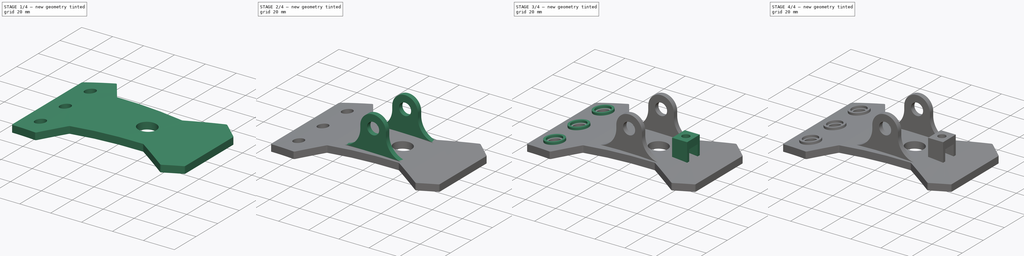
[diagram: build sequence overview — one tinted view per stage of 4, left to right]
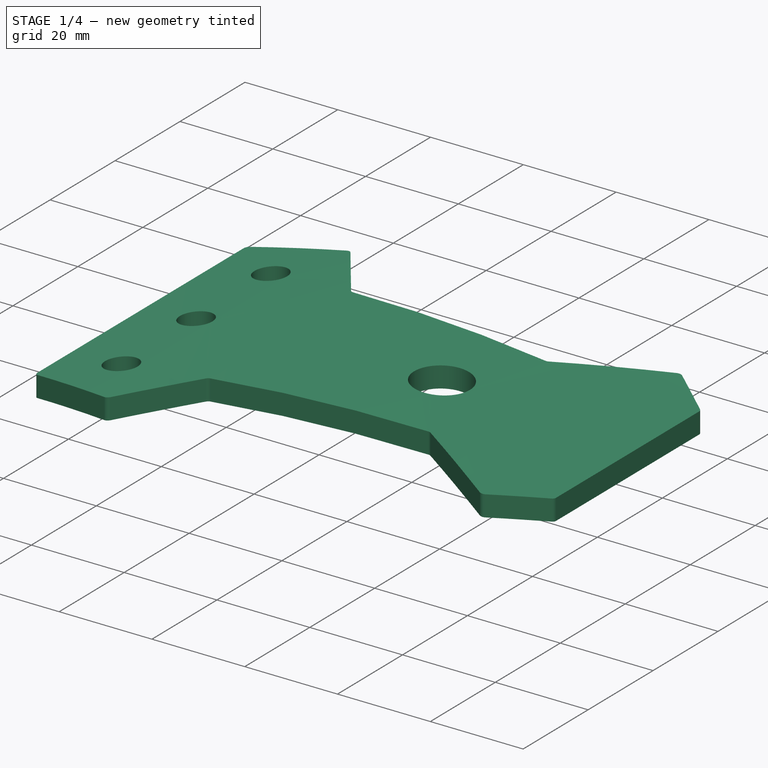
[diagram: stage 1 of 4 — iso view after this stage's code; geometry added in this stage tinted green]
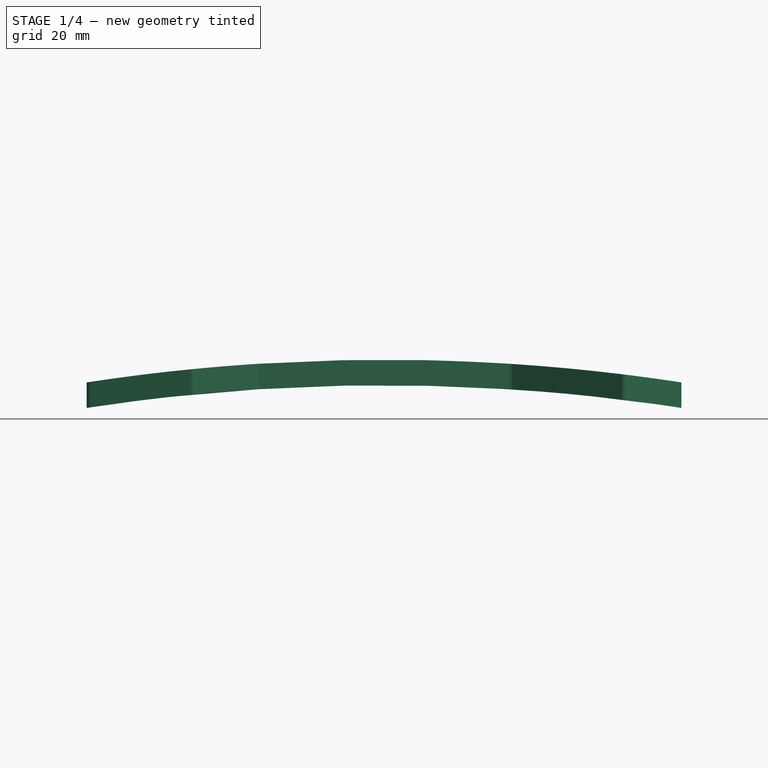
[diagram: stage 1 of 4 — front view after this stage's code; geometry added in this stage tinted green]
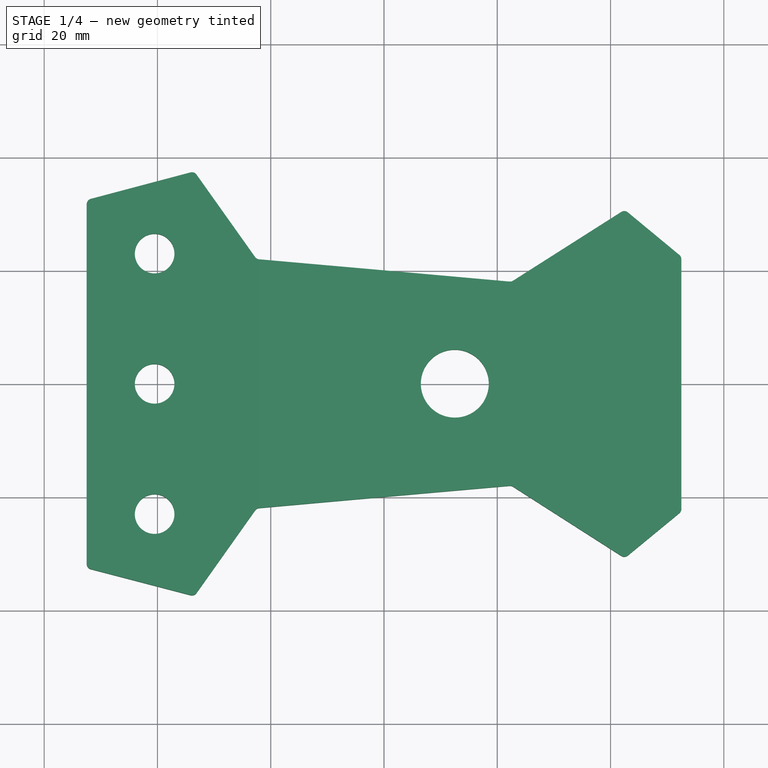
[diagram: stage 1 of 4 — top view after this stage's code; geometry added in this stage tinted green]
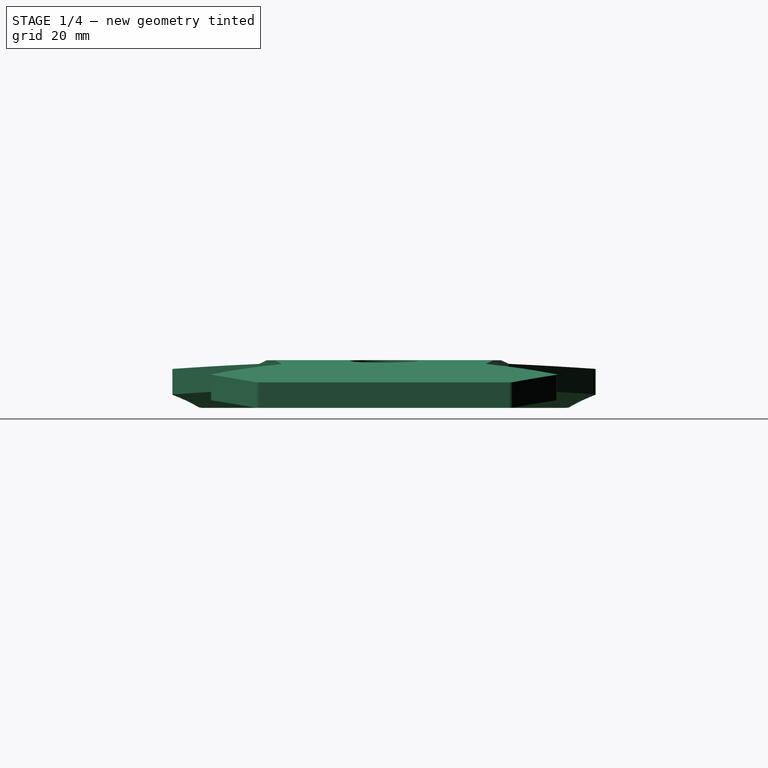
[diagram: stage 1 of 4 — right view after this stage's code; geometry added in this stage tinted green]
FCSTD DOCUMENT  (FreeCAD 0.19R24267 (Git))
Label: ClipLampeAlix2
License: All rights reserved
LicenseURL: http://en.wikipedia.org/wiki/All_rights_reserved
objects: Sketcher::SketchObject×7, PartDesign::Pad×4, PartDesign::Plane×3, PartDesign::Pocket×2, Spreadsheet::Sheet×1, PartDesign::Mirrored×1, Part::Part2DObjectPython×1, Part::Helix×1, Part::Sweep×1, Part::Cut×1, PartDesign::Body×1
note: 28 computed .brp shape members not serialized (recipe doc carries the construction recipe); baked Part::Feature solids carry a one-line shape summary decoded from their .brp

FEATURE [Spreadsheet::Sheet] Spreadsheet  label="Dimensions"
  cells = A1=BaseHeight1; B1(BaseHeight1)==65mm; A2=BaseHeight2; B2(BaseHeight2)==75mm; A3=BaseHeight3; B3(BaseHeight3)==44mm; A4=BaseHeight4; B4(BaseHeight4)==36mm; A5=BaseHeight5; B5(BaseHeight5)==61.5mm; A6=BaseHeight6; B6(BaseHeight6)==45mm; A7=BaseWidthTo1; B7(BaseWidthTo1)==105mm; A8=BaseWidthTo2; B8(BaseWidthTo2)==86mm; A9=BaseWidthTo3; B9(BaseWidthTo3)==75mm; A10=BaseWidthTo4; B10(BaseWidthTo4)==30mm; A11=BaseWidthTo5; B11(BaseWidthTo5)==10mm; A12=BaseCornerRadius; B12(BaseCornerRadius)==1mm; A13=BaseCurve; B13(BaseCurve)==4mm; C13=Base curve; A14=BaseThicknness; B14(BaseThicknness)==4.5mm; A15=BaseInitialThickness; B15(BaseInitialThickness)==9mm; A16=SuckerHoleCentreToHeight1; B16(SuckerHoleCentreToHeight1)==12mm; I16=6; A17=SuckerHoleBottomRadius; B17(SuckerHoleBottomRadius)==3.5mm; A18=SuckerHolesSeparation; B18(SuckerHolesSeparation)==23mm; A19=SuckerHoleWallOuterHeight; B19(SuckerHoleWallOuterHeight)==2.5mm; A20=SuckerHoleWallInnerHeight; B20(SuckerHoleWallInnerHeight)==1.5mm; A21=SuckerHoleWallThickness; B21(SuckerHoleWallThickness)==1.5mm; A22=SuckerHoleWallRadius; B22(SuckerHoleWallRadius)==12.5mm / 2; A23=SuckerHoleThrottleRadius; B23(SuckerHoleThrottleRadius)==2.5mm; A24=SuckerHoleThrottleFromBottom; B24(SuckerHoleThrottleFromBottom)=0; C24==3mm; A25=WireHoleToHeight6; B25(WireHoleToHeight6)==40mm; A26=WireHoleRadius; B26(WireHoleRadius)==6mm; A27=AxisOuterRadius; B27(AxisOuterRadius)==8.5mm; A28=AxisInnerRadius; B28(AxisInnerRadius)==4mm; A29=AxisThickness; B29(AxisThickness)==3.2mm; A30=AxisHeightFromBaseTop; B30(AxisHeightFromBaseTop)==22.5mm - AxisOuterRadius; A31=AxisHeightFromBaseBottom; B31(AxisHeightFromBaseBottom)==AxisHeightFromBaseTop + BaseInitialThickness; A32=AxisOuterSeparation; B32(AxisOuterSeparation)==33.5mm; C32==AxisOuterSeparation / 2; A33=AxisCentreFromHeight1; B33(AxisCentreFromHeight1)==57mm; A34=CableTieBoxLength; B34(CableTieBoxLength)==12mm; A35=CableTieBoxHeight; B35(CableTieBoxHeight)==12.5mm; A36=CableTieBoxWidth; B36(CableTieBoxWidth)==10mm; A37=CableTieXWallThickness; B37(CableTieXWallThickness)==5mm; A38=CableTieZWallThickness; B38(CableTieZWallThickness)==2mm; A39=CableTieScrewThreadRadiusInner; B39(CableTieScrewThreadRadiusInner)==2.8mm; A40=CableTieScrewThreadRadiusOuter; B40(CableTieScrewThreadRadiusOuter)==2.5mm; A41=CableTieScrewPitch; B41(CableTieScrewPitch)==1mm; A42=CableTieToHeight6Separation; B42(CableTieToHeight6Separation)==17mm; A43=CableTieToBase; B43(CableTieToBase)==BaseInitialThickness - 2.5mm; A44=CableTieCentrePosition; B44(CableTieCentrePosition)==BaseWidthTo1 / 2 - CableTieToHeight6Separation - CableTieBoxWidth / 2
FEATURE [Sketcher::SketchObject] Sketch  label="Sketch_BaseShape"
  FullyConstrained = true
  MapMode = 5
  Support = -> [XY_Plane]
  expr: Constraints[16] = <<Dimensions>>.BaseHeight1
  expr: Constraints[56] = <<Dimensions>>.BaseCornerRadius
  expr: Constraints[52] = <<Dimensions>>.BaseCornerRadius
  expr: Constraints[60] = <<Dimensions>>.BaseCornerRadius
  expr: Constraints[50] = <<Dimensions>>.BaseCornerRadius
  expr: Constraints[18] = <<Dimensions>>.BaseHeight3
  expr: Constraints[26] = <<Dimensions>>.BaseWidthTo4
  expr: Constraints[89] = <<Dimensions>>.BaseCornerRadius
  expr: Constraints[20] = <<Dimensions>>.BaseHeight6
  expr: Constraints[58] = <<Dimensions>>.BaseCornerRadius
  expr: Constraints[54] = <<Dimensions>>.BaseCornerRadius
  expr: Constraints[90] = <<Dimensions>>.SuckerHoleBottomRadius
  expr: Constraints[93] = <<Dimensions>>.SuckerHolesSeparation
  expr: Constraints[53] = <<Dimensions>>.BaseCornerRadius
  expr: Constraints[27] = <<Dimensions>>.BaseWidthTo1 / 2
  expr: Constraints[17] = <<Dimensions>>.BaseHeight2
  expr: Constraints[55] = <<Dimensions>>.BaseCornerRadius
  expr: Constraints[22] = <<Dimensions>>.BaseWidthTo1
  expr: Constraints[21] = <<Dimensions>>.BaseHeight4
  expr: Constraints[25] = <<Dimensions>>.BaseWidthTo5
  expr: Constraints[51] = <<Dimensions>>.BaseCornerRadius
  expr: Constraints[23] = <<Dimensions>>.BaseWidthTo2
  expr: Constraints[19] = <<Dimensions>>.BaseHeight5
  expr: Constraints[101] = <<Dimensions>>.WireHoleToHeight6
  expr: Constraints[59] = <<Dimensions>>.BaseCornerRadius
  expr: Constraints[24] = <<Dimensions>>.BaseWidthTo3
  expr: Constraints[94] = <<Dimensions>>.SuckerHolesSeparation
  expr: Constraints[57] = <<Dimensions>>.BaseCornerRadius
  expr: Constraints[91] = <<Dimensions>>.SuckerHoleBottomRadius
  expr: Constraints[92] = <<Dimensions>>.SuckerHoleBottomRadius
  expr: Constraints[98] = <<Dimensions>>.SuckerHoleCentreToHeight1
  expr: Constraints[100] = <<Dimensions>>.WireHoleRadius
  sketch-geometry (40):
    g0: LineSegment StartX=-52.5 StartY=32.5 StartZ=0 EndX=-52.5 EndY=-32.5 EndZ=0
    g1: LineSegment StartX=-52.5 StartY=-32.5 StartZ=0 EndX=-33.5 EndY=-37.5 EndZ=0
    g2: LineSegment StartX=-33.5 StartY=-37.5 StartZ=0 EndX=-22.5 EndY=-22 EndZ=0
    g3: LineSegment StartX=-22.5 StartY=-22 StartZ=0 EndX=22.5 EndY=-18 EndZ=0
    g4: LineSegment StartX=22.5 StartY=-18 StartZ=0 EndX=42.5 EndY=-30.75 EndZ=0
    g5: LineSegment StartX=42.5 StartY=-30.75 StartZ=0 EndX=52.5 EndY=-22.5 EndZ=0
    g6: LineSegment StartX=52.5 StartY=-22.5 StartZ=0 EndX=52.5 EndY=22.5 EndZ=0
    g7: LineSegment StartX=52.5 StartY=22.5 StartZ=0 EndX=42.5 EndY=30.75 EndZ=0
    g8: LineSegment StartX=42.5 StartY=30.75 StartZ=0 EndX=22.5 EndY=18 EndZ=0
    g9: LineSegment StartX=22.5 StartY=18 StartZ=0 EndX=-22.5 EndY=22 EndZ=0
    g10: LineSegment StartX=-22.5 StartY=22 StartZ=0 EndX=-33.5 EndY=37.5 EndZ=0
    g11: LineSegment StartX=-33.5 StartY=37.5 StartZ=0 EndX=-52.5 EndY=32.5 EndZ=0
    g12: LineSegment StartX=-52.5 StartY=31.7291 StartZ=0 EndX=-52.5 EndY=-31.7291 EndZ=0
    g13: LineSegment StartX=-51.7545 StartY=-32.6962 StartZ=0 EndX=-34.1694 EndY=-37.3238 EndZ=0
    g14: LineSegment StartX=-33.0994 StartY=-36.9355 StartZ=0 EndX=-22.7672 EndY=-22.3765 EndZ=0
    g15: LineSegment StartX=-22.0402 StartY=-21.9591 StartZ=0 EndX=22.1609 EndY=-18.0301 EndZ=0
    g16: LineSegment StartX=22.787 StartY=-18.183 StartZ=0 EndX=41.8869 EndY=-30.3592 EndZ=0
    g17: LineSegment StartX=43.0608 StartY=-30.2873 StartZ=0 EndX=52.1364 EndY=-22.8 EndZ=0
    g18: LineSegment StartX=52.5 StartY=-22.0286 StartZ=0 EndX=52.5 EndY=22.0286 EndZ=0
    g19: LineSegment StartX=52.1364 StartY=22.8 StartZ=0 EndX=43.0608 EndY=30.2873 EndZ=0
    g20: LineSegment StartX=41.8869 StartY=30.3592 StartZ=0 EndX=22.787 EndY=18.183 EndZ=0
    g21: LineSegment StartX=22.1609 StartY=18.0301 StartZ=0 EndX=-22.0402 EndY=21.9591 EndZ=0
    g22: LineSegment StartX=-22.7672 StartY=22.3765 StartZ=0 EndX=-33.0994 EndY=36.9355 EndZ=0
    g23: LineSegment StartX=-34.1694 StartY=37.3238 StartZ=0 EndX=-51.7545 EndY=32.6962 EndZ=0
    g24: ArcOfCircle CenterX=-33.9149 CenterY=36.3568 CenterZ=0 NormalX=0 NormalY=0 NormalZ=1 AngleXU=0 Radius=1 StartAngle=0.617191 EndAngle=1.82812
    g25: ArcOfCircle CenterX=-21.9517 CenterY=22.9552 CenterZ=0 NormalX=0 NormalY=0 NormalZ=1 AngleXU=0 Radius=1 StartAngle=3.75878 EndAngle=4.62373
    g26: ArcOfCircle CenterX=22.2495 CenterY=19.0262 CenterZ=0 NormalX=0 NormalY=0 NormalZ=1 AngleXU=0 Radius=1 StartAngle=4.62373 EndAngle=5.27993
    g27: ArcOfCircle CenterX=42.4245 CenterY=29.5159 CenterZ=0 NormalX=0 NormalY=0 NormalZ=1 AngleXU=0 Radius=1 StartAngle=0.880996 EndAngle=2.13833
    g28: ArcOfCircle CenterX=51.5 CenterY=22.0286 CenterZ=0 NormalX=0 NormalY=0 NormalZ=1 AngleXU=0 Radius=1 StartAngle=4e-16 EndAngle=0.880996
    g29: ArcOfCircle CenterX=51.5 CenterY=-22.0286 CenterZ=0 NormalX=0 NormalY=0 NormalZ=1 AngleXU=0 Radius=1 StartAngle=5.40219 EndAngle=6.28319
    g30: ArcOfCircle CenterX=42.4245 CenterY=-29.5159 CenterZ=0 NormalX=0 NormalY=0 NormalZ=1 AngleXU=0 Radius=1 StartAngle=4.14485 EndAngle=5.40219
    g31: ArcOfCircle CenterX=22.2495 CenterY=-19.0262 CenterZ=0 NormalX=0 NormalY=0 NormalZ=1 AngleXU=0 Radius=1 StartAngle=1.00326 EndAngle=1.65945
    g32: ArcOfCircle CenterX=-21.9517 CenterY=-22.9552 CenterZ=0 NormalX=0 NormalY=0 NormalZ=1 AngleXU=0 Radius=1 StartAngle=1.65945 EndAngle=2.5244
    g33: ArcOfCircle CenterX=-51.5 CenterY=-31.7291 CenterZ=0 NormalX=0 NormalY=0 NormalZ=1 AngleXU=0 Radius=1 StartAngle=3.14159 EndAngle=4.45507
    g34: ArcOfCircle CenterX=-51.5 CenterY=31.7291 CenterZ=0 NormalX=0 NormalY=0 NormalZ=1 AngleXU=0 Radius=1 StartAngle=1.82812 EndAngle=3.14159
    g35: ArcOfCircle CenterX=-33.9149 CenterY=-36.3568 CenterZ=0 NormalX=0 NormalY=0 NormalZ=1 AngleXU=0 Radius=1 StartAngle=4.45507 EndAngle=5.66599
    g36: Circle CenterX=-40.5 CenterY=0 CenterZ=0 NormalX=0 NormalY=0 NormalZ=1 AngleXU=0 Radius=3.5
    g37: Circle CenterX=-40.5 CenterY=23 CenterZ=0 NormalX=0 NormalY=0 NormalZ=1 AngleXU=0 Radius=3.5
    g38: Circle CenterX=-40.5 CenterY=-23 CenterZ=0 NormalX=0 NormalY=0 NormalZ=1 AngleXU=0 Radius=3.5
    g39: Circle CenterX=12.5 CenterY=0 CenterZ=0 NormalX=0 NormalY=0 NormalZ=1 AngleXU=0 Radius=6
  constraints (102):
    c: Coincident(g0,g1)
    c: Coincident(g2,g3)
    c: Coincident(g3,g4)
    c: Coincident(g4,g5)
    c: Coincident(g5,g6)
    c: Coincident(g6,g7)
    c: Coincident(g7,g8)
    c: Coincident(g8,g9)
    c: Coincident(g9,g10)
    c: Coincident(g10,g11)
    c: Coincident(g11,g0)
    c: Symmetric(g0,g0,g-1)
    c: Symmetric(g2,g9,g-1)
    c: Symmetric(g8,g3,g-1)
    c: Symmetric(g7,g4,g-1)
    c: Symmetric(g6,g5,g-1)
    c: DistanceY(g0,g0) = 65
    c: DistanceY(g2,g10) = 75
    c: DistanceY(g2,g9) = 44
    c: DistanceY(g4,g7) = 61.5
    c: DistanceY(g6,g6) = 45
    c: DistanceY(g3,g8) = 36
    c: DistanceX(g0,g5) = 105
    c: DistanceX(g2,g5) = 86
    c: DistanceX(g2,g5) = 75
    c: DistanceX(g4,g5) = 10
    c: DistanceX(g3,g5) = 30
    c: DistanceX(g-1,g5) = 52.5
    c: Tangent(g23,g24) = -1.5708
    c: Tangent(g22,g24) = -1.5708
    c: Tangent(g22,g25) = 1.5708
    c: Tangent(g21,g25) = 1.5708
    c: Tangent(g21,g26) = 1.5708
    c: Tangent(g20,g26) = 1.5708
    c: Tangent(g20,g27) = -1.5708
    c: Tangent(g19,g27) = -1.5708
    c: Tangent(g19,g28) = -1.5708
    c: Tangent(g18,g28) = -1.5708
    c: Tangent(g18,g29) = -1.5708
    c: Tangent(g17,g29) = -1.5708
    c: Tangent(g17,g30) = -1.5708
    c: Tangent(g16,g30) = -1.5708
    c: Tangent(g16,g31) = 1.5708
    c: Tangent(g15,g31) = 1.5708
    c: Tangent(g15,g32) = 1.5708
    c: Tangent(g14,g32) = 1.5708
    c: Tangent(g13,g33) = -1.5708
    c: Tangent(g12,g33) = -1.5708
    c: Tangent(g12,g34) = -1.5708
    c: Tangent(g23,g34) = -1.5708
    c: Radius(g34) = 1
    c: Radius(g24) = 1
    c: Radius(g25) = 1
    c: Radius(g26) = 1
    c: Radius(g27) = 1
    c: Radius(g28) = 1
    c: Radius(g33) = 1
    c: Radius(g32) = 1
    c: Radius(g31) = 1
    c: Radius(g30) = 1
    c: Radius(g29) = 1
    c: Parallel(g15,g3)
    c: Parallel(g16,g4)
    c: Parallel(g17,g5)
    c: Parallel(g18,g6)
    c: Parallel(g2,g14)
    c: Parallel(g13,g1)
    c: Parallel(g12,g0)
    c: Parallel(g23,g11)
    c: Parallel(g19,g7)
    c: Parallel(g20,g8)
    c: Parallel(g21,g9)
    c: Coincident(g2,g1)
    c: Parallel(g22,g10)
    c: Symmetric(g10,g1,g-1)
    c: PointOnObject(g22,g10)
    c: PointOnObject(g23,g11)
    c: PointOnObject(g21,g9)
    c: PointOnObject(g12,g0)
    c: PointOnObject(g20,g8)
    c: PointOnObject(g19,g7)
    c: PointOnObject(g18,g6)
    c: PointOnObject(g13,g1)
    c: PointOnObject(g17,g5)
    c: PointOnObject(g16,g4)
    c: PointOnObject(g15,g3)
    c: PointOnObject(g14,g2)
    c: Tangent(g14,g35) = -1.5708
    c: Tangent(g13,g35) = -1.5708
    c: Radius(g35) = 1
    c: Radius(g37) = 3.5
    c: Radius(g36) = 3.5
    c: Radius(g38) = 3.5
    c: DistanceY(g36,g37) = 23
    c: DistanceY(g38,g36) = 23
    c: Vertical(g36,g37)
    c: Vertical(g36,g38)
    c: Horizontal(g36,g-1)
    c: Distance(g36,g12) = 12
    c: Horizontal(g39,g-1)
    c: Radius(g39) = 6
    c: Distance(g39,g18) = 40
FEATURE [PartDesign::Pad] Pad  label="Pad_Base"
  AllowMultiFace = false
  Direction = (1,1,1)
  Length = 9
  Length2 = 100
  Profile = -> Sketch
  Type = 0
  expr: Length = <<Dimensions>>.BaseInitialThickness
FEATURE [PartDesign::Plane] DatumPlane  label="DatumPlane_BasePlateCurve"
  AttachmentOffset = pos=(0,0,37.5) rot=(0,0,1;0rad)
  Length = 123.071
  MapMode = 2
  Placement = pos=(0,-37.5,-8.3e-15) rot=(1,0,0;1.5708rad)
  ResizeMode = 0
  Support = -> [XZ_Plane]
  Width = 64.7207
  expr: .AttachmentOffset.Base.z = <<Dimensions>>.BaseHeight2 / 2
FEATURE [Sketcher::SketchObject] Sketch005  label="Sketch_BasePlateCurve"
  FullyConstrained = true
  MapMode = 5
  Placement = pos=(0,-37.5,-8.3e-15) rot=(1,0,0;1.5708rad)
  Support = -> [DatumPlane]
  expr: Constraints[10] = <<Dimensions>>.BaseWidthTo1
  expr: Constraints[11] = <<Dimensions>>.BaseWidthTo1 / 2
  expr: Constraints[12] = <<Dimensions>>.BaseThicknness
  expr: Constraints[13] = <<Dimensions>>.BaseInitialThickness
  expr: Constraints[14] = <<Dimensions>>.BaseCurve
  expr: Constraints[15] = <<Dimensions>>.BaseThicknness
  sketch-geometry (14):
    g0: GeomPoint X=-52.5 Y=9 Z=0
    g1: GeomPoint X=-52.5 Y=4.5 Z=0
    g2: GeomPoint X=-52.5 Y=0 Z=0
    g3: GeomPoint X=52.5 Y=9 Z=0
    g4: GeomPoint X=52.5 Y=4.5 Z=0
    g5: GeomPoint X=52.5 Y=0 Z=0
    g6: GeomPoint X=0 Y=4 Z=0
    g7: GeomPoint X=0 Y=8.5 Z=0
    g8: LineSegment StartX=-52.5 StartY=0 StartZ=0 EndX=52.5 EndY=0 EndZ=0
    g9: LineSegment StartX=-52.5 StartY=9 StartZ=0 EndX=52.5 EndY=9 EndZ=0
    g10: LineSegment StartX=52.5 StartY=9 StartZ=0 EndX=52.5 EndY=4.5 EndZ=0
    g11: LineSegment StartX=-52.5 StartY=9 StartZ=0 EndX=-52.5 EndY=4.5 EndZ=0
    g12: ArcOfCircle CenterX=-9.23e-14 CenterY=-342.531 CenterZ=0 NormalX=0 NormalY=0 NormalZ=1 AngleXU=0 Radius=346.531 StartAngle=1.41871 EndAngle=1.72288
    g13: ArcOfCircle CenterX=-1.49e-14 CenterY=-338.031 CenterZ=0 NormalX=0 NormalY=0 NormalZ=1 AngleXU=0 Radius=346.531 StartAngle=1.41871 EndAngle=1.72288
  constraints (30):
    c: PointOnObject(g2,g-1)
    c: PointOnObject(g5,g-1)
    c: PointOnObject(g6,g-2)
    c: PointOnObject(g7,g-2)
    c: Vertical(g5,g4)
    c: Vertical(g4,g3)
    c: Vertical(g2,g1)
    c: Vertical(g1,g0)
    c: Horizontal(g0,g3)
    c: Horizontal(g1,g4)
    c: DistanceX(g2,g5) = 105
    c: DistanceX(g-1,g5) = 52.5
    c: DistanceY(g5,g4) = 4.5
    c: DistanceY(g5,g3) = 9
    c: DistanceY(g-1,g6) = 4
    c: DistanceY(g6,g7) = 4.5
    c: Coincident(g8,g2)
    c: Coincident(g8,g5)
    c: Coincident(g9,g0)
    c: Coincident(g9,g3)
    c: Coincident(g10,g3)
    c: Coincident(g10,g4)
    c: Coincident(g11,g0)
    c: Coincident(g11,g1)
    c: Coincident(g12,g2)
    c: Coincident(g12,g5)
    c: PointOnObject(g6,g12)
    c: Coincident(g13,g4)
    c: Coincident(g13,g1)
    c: PointOnObject(g7,g13)
FEATURE [PartDesign::Pocket] Pocket  label="Pocket_basePlatCurve"
  AllowMultiFace = false
  BaseFeature = -> Pad
  Length = 75
  Length2 = 100
  Profile = -> Sketch005
  Type = 0
  expr: Length = <<Dimensions>>.BaseHeight2
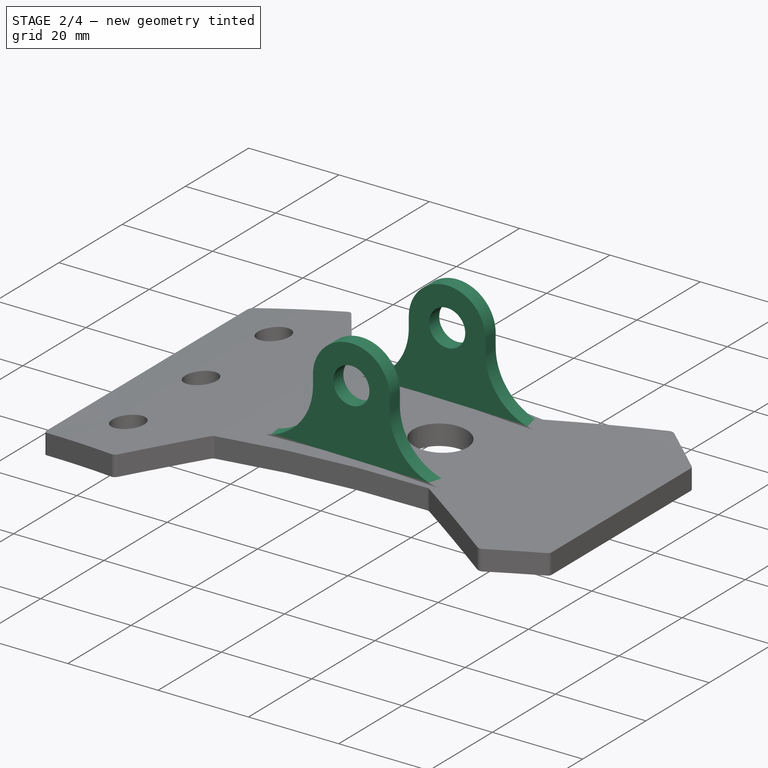
[diagram: stage 2 of 4 — iso view after this stage's code; geometry added in this stage tinted green]
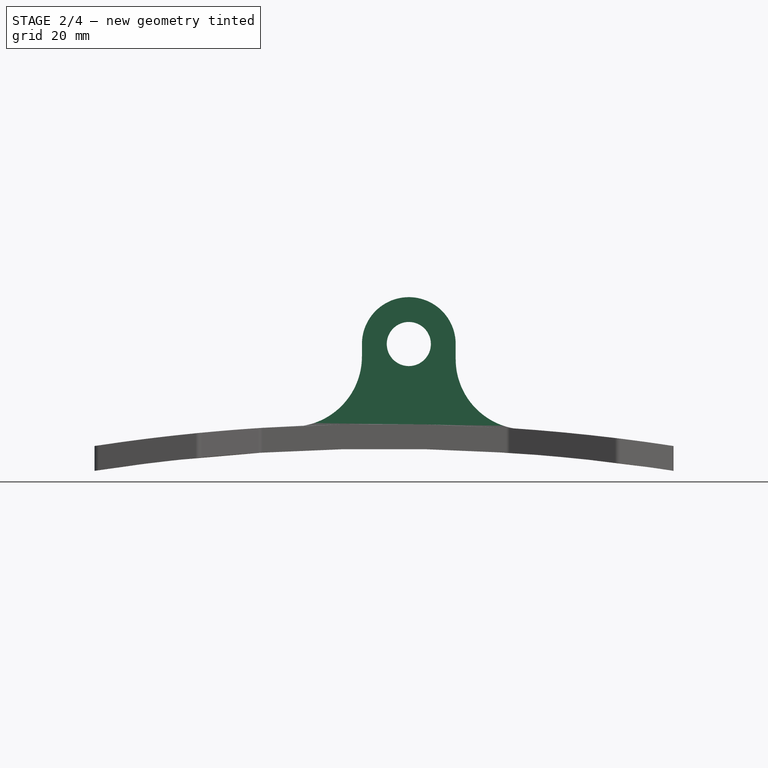
[diagram: stage 2 of 4 — front view after this stage's code; geometry added in this stage tinted green]
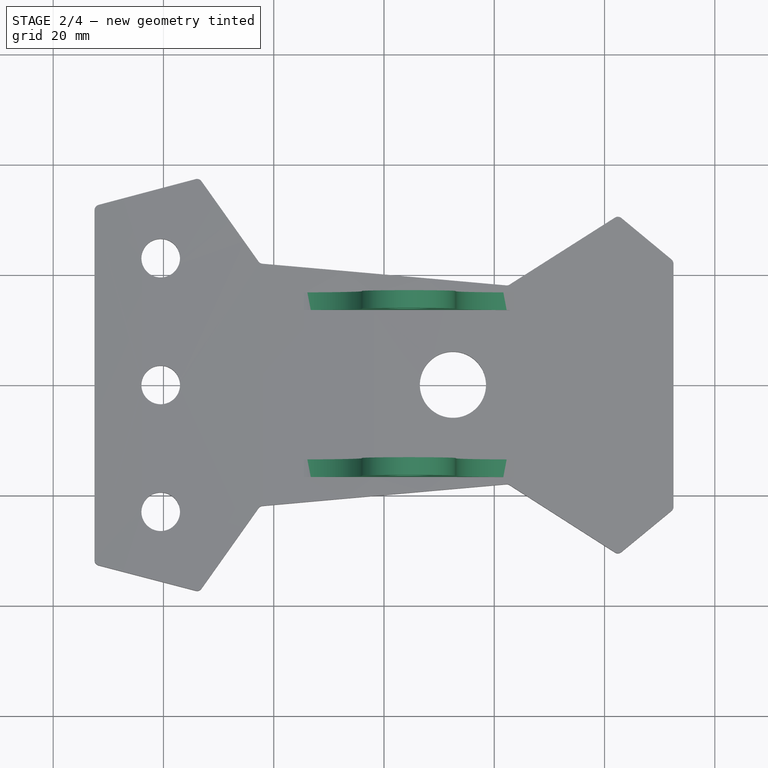
[diagram: stage 2 of 4 — top view after this stage's code; geometry added in this stage tinted green]
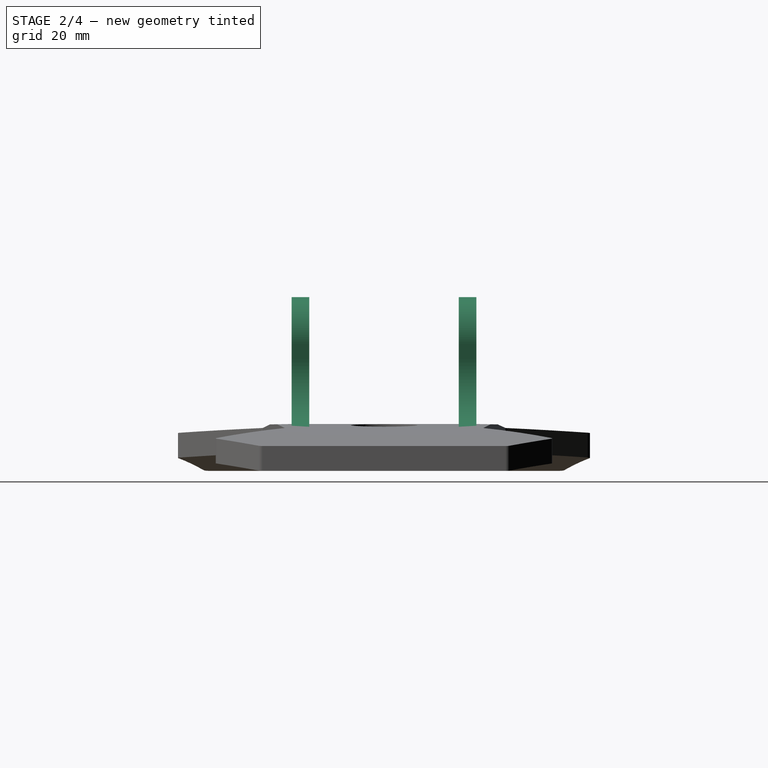
[diagram: stage 2 of 4 — right view after this stage's code; geometry added in this stage tinted green]
FEATURE [PartDesign::Plane] DatumPlane001  label="DatumPlane_FrontAxisSupport"
  AttachmentOffset = pos=(0,0,16.75) rot=(0,0,1;0rad)
  Length = 123.071
  MapMode = 2
  Placement = pos=(0,-16.75,-3.7e-15) rot=(1,0,0;1.5708rad)
  ResizeMode = 0
  Support = -> [XZ_Plane]
  Width = 64.7207
  expr: .AttachmentOffset.Base.z = <<Dimensions>>.AxisOuterSeparation / 2
FEATURE [Sketcher::SketchObject] Sketch006  label="Sketch_AxisSupport1"
  FullyConstrained = true
  MapMode = 5
  Placement = pos=(0,-16.75,-3.7e-15) rot=(1,0,0;1.5708rad)
  Support = -> [DatumPlane001]
  expr: Constraints[0] = <<Dimensions>>.AxisHeightFromBaseBottom
  expr: Constraints[3] = <<Dimensions>>.AxisCentreFromHeight1
  expr: Constraints[2] = <<Dimensions>>.BaseWidthTo1 / 2
  expr: Constraints[5] = <<Dimensions>>.AxisInnerRadius
  expr: Constraints[7] = <<Dimensions>>.AxisOuterRadius * 2.5
  expr: Constraints[13] = <<Dimensions>>.AxisOuterRadius
  sketch-geometry (11):
    g0: GeomPoint X=4.5 Y=23 Z=0
    g1: GeomPoint X=-52.5 Y=0 Z=0
    g2: Circle CenterX=4.5 CenterY=23 CenterZ=0 NormalX=0 NormalY=0 NormalZ=1 AngleXU=0 Radius=4
    g3: LineSegment StartX=-16.75 StartY=8 StartZ=0 EndX=-4 EndY=8 EndZ=0
    g4: ArcOfCircle CenterX=-16.75 CenterY=20.75 CenterZ=0 NormalX=0 NormalY=0 NormalZ=1 AngleXU=0 Radius=12.75 StartAngle=4.71239 EndAngle=6.28319
    g5: ArcOfCircle CenterX=25.75 CenterY=20.25 CenterZ=0 NormalX=0 NormalY=0 NormalZ=1 AngleXU=0 Radius=12.75 StartAngle=3.14159 EndAngle=4.71239
    g6: LineSegment StartX=13 StartY=7.5 StartZ=0 EndX=25.75 EndY=7.5 EndZ=0
    g7: ArcOfCircle CenterX=4.5 CenterY=23 CenterZ=0 NormalX=0 NormalY=0 NormalZ=1 AngleXU=0 Radius=8.5 StartAngle=0 EndAngle=3.14159
    g8: LineSegment StartX=13 StartY=23 StartZ=0 EndX=13 EndY=20.25 EndZ=0
    g9: LineSegment StartX=-4 StartY=23 StartZ=0 EndX=-4 EndY=20.75 EndZ=0
    g10: LineSegment StartX=-4 StartY=8 StartZ=0 EndX=13 EndY=7.5 EndZ=0
  constraints (26):
    c: DistanceY(g-1,g0) = 23
    c: PointOnObject(g1,g-1)
    c: DistanceX(g1,g-1) = 52.5
    c: DistanceX(g1,g0) = 57
    c: Coincident(g2,g0)
    c: Radius(g2) = 4
    c: Horizontal(g6)
    c: Vertical(g4,g3) = 21.25
    c: DistanceY(g-1,g3) = 8
    c: DistanceY(g-1,g5) = 7.5
    c: DistanceX(g4,g0) = 21.25
    c: DistanceX(g0,g5) = 21.25
    c: Coincident(g7,g0)
    c: Radius(g7) = 8.5
    c: Vertical(g8)
    c: Vertical(g9)
    c: Tangent(g8,g5) = -1.5708
    c: Tangent(g9,g4) = 1.5708
    c: Tangent(g8,g7) = 1.5708
    c: Tangent(g9,g7) = -1.5708
    c: Coincident(g10,g3)
    c: Coincident(g10,g6)
    c: Vertical(g3,g4)
    c: Vertical(g6,g5)
    c: Tangent(g6,g5) = -1.5708
    c: Tangent(g3,g4) = -1.5708
FEATURE [PartDesign::Pad] Pad002  label="Pad_AxisSupport1"
  AllowMultiFace = false
  BaseFeature = -> Pocket
  Direction = (1,1,1)
  Length = 3.2
  Length2 = 100
  Profile = -> Sketch006
  Reversed = true
  Type = 0
  expr: Length = <<Dimensions>>.AxisThickness
FEATURE [PartDesign::Mirrored] Mirrored  label="Mirrored_Pad_AxisSupport1_for2"
  BaseFeature = -> Pad002
  MirrorPlane = -> XZ_Plane
  Originals = -> [Pad002]
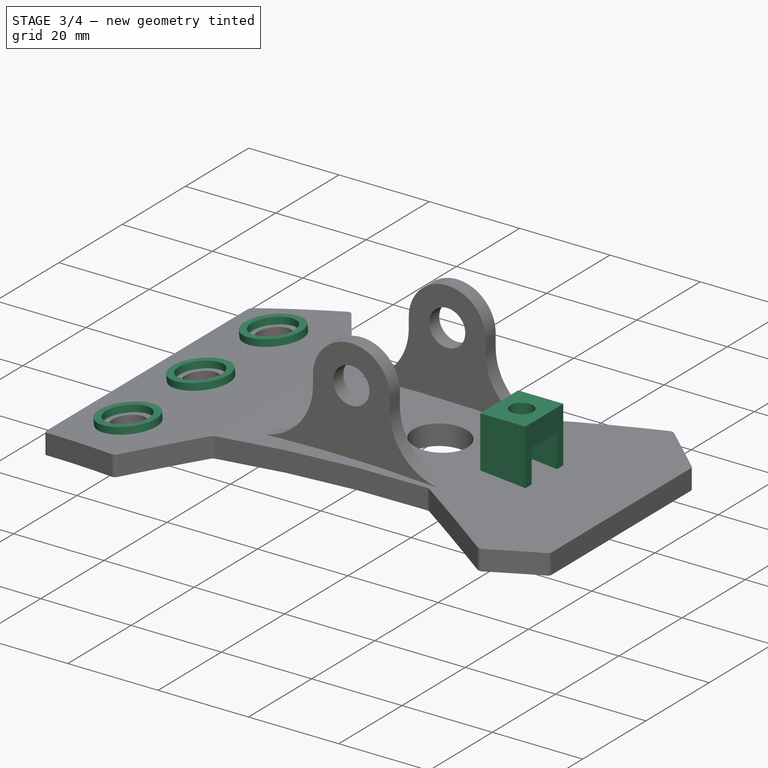
[diagram: stage 3 of 4 — iso view after this stage's code; geometry added in this stage tinted green]
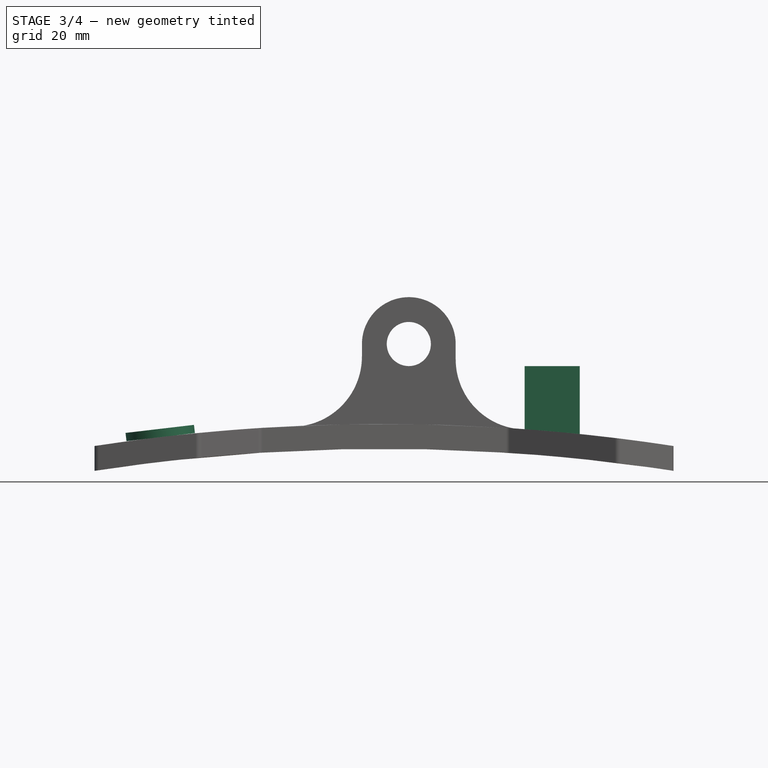
[diagram: stage 3 of 4 — front view after this stage's code; geometry added in this stage tinted green]
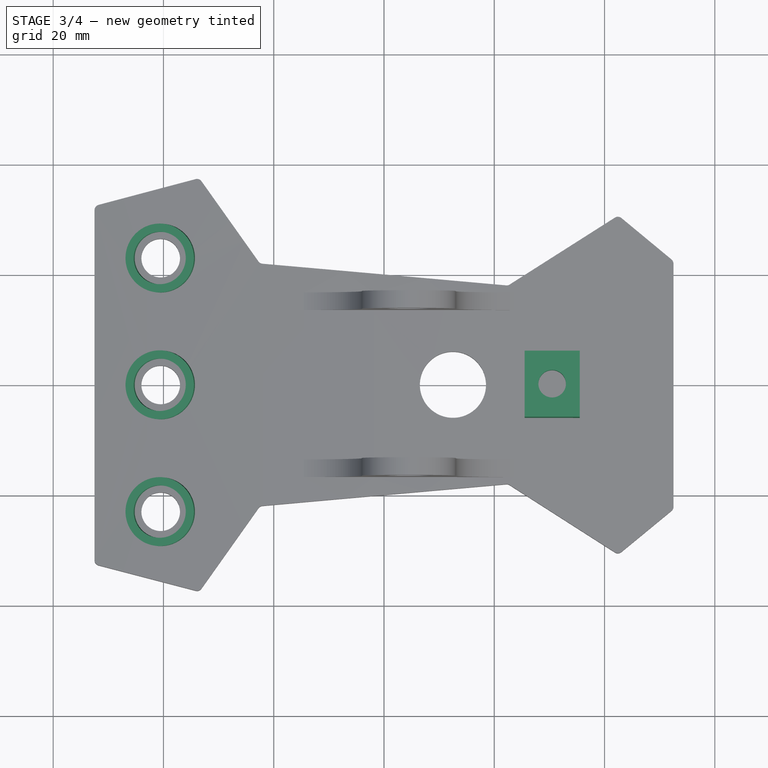
[diagram: stage 3 of 4 — top view after this stage's code; geometry added in this stage tinted green]
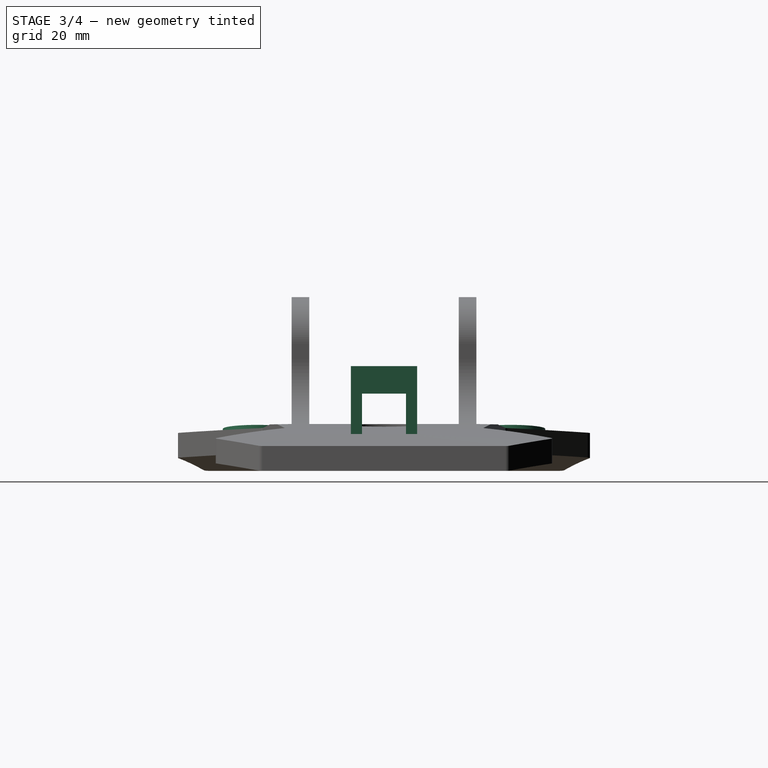
[diagram: stage 3 of 4 — right view after this stage's code; geometry added in this stage tinted green]
FEATURE [PartDesign::Plane] DatumPlane002  label="DatumPlane_CableTie"
  AttachmentOffset = pos=(0,0,-17) rot=(0,0,1;0rad)
  Length = 86.9356
  MapMode = 5
  Placement = pos=(35.5,0,0) rot=(0.57735,0.57735,0.57735;2.0944rad)
  ResizeMode = 0
  Support = -> [Pad002]
  Width = 62.2239
  expr: .AttachmentOffset.Base.z = -<<Dimensions>>.CableTieToHeight6Separation
FEATURE [Sketcher::SketchObject] Sketch007  label="SketchCableTie"
  FullyConstrained = true
  MapMode = 5
  Placement = pos=(35.5,0,0) rot=(0.57735,0.57735,0.57735;2.0944rad)
  Support = -> [DatumPlane002]
  expr: Constraints[16] = <<Dimensions>>.CableTieZWallThickness
  expr: Constraints[17] = <<Dimensions>>.CableTieZWallThickness
  expr: Constraints[22] = <<Dimensions>>.CableTieBoxLength / 2
  expr: Constraints[18] = <<Dimensions>>.CableTieXWallThickness
  expr: Constraints[19] = <<Dimensions>>.CableTieBoxHeight
  expr: Constraints[21] = <<Dimensions>>.CableTieToBase
  sketch-geometry (8):
    g0: LineSegment StartX=-6 StartY=19 StartZ=0 EndX=-6 EndY=6.5 EndZ=0
    g1: LineSegment StartX=-6 StartY=6.5 StartZ=0 EndX=-4 EndY=6.5 EndZ=0
    g2: LineSegment StartX=-4 StartY=6.5 StartZ=0 EndX=-4 EndY=14 EndZ=0
    g3: LineSegment StartX=-4 StartY=14 StartZ=0 EndX=4 EndY=14 EndZ=0
    g4: LineSegment StartX=4 StartY=14 StartZ=0 EndX=4 EndY=6.5 EndZ=0
    g5: LineSegment StartX=4 StartY=6.5 StartZ=0 EndX=6 EndY=6.5 EndZ=0
    g6: LineSegment StartX=6 StartY=6.5 StartZ=0 EndX=6 EndY=19 EndZ=0
    g7: LineSegment StartX=6 StartY=19 StartZ=0 EndX=-6 EndY=19 EndZ=0
  constraints (23):
    c: Vertical(g0)
    c: Coincident(g0,g1)
    c: Horizontal(g1)
    c: Coincident(g1,g2)
    c: Vertical(g2)
    c: Coincident(g2,g3)
    c: Coincident(g3,g4)
    c: Coincident(g4,g5)
    c: Coincident(g5,g6)
    c: Vertical(g6)
    c: Coincident(g6,g7)
    c: Coincident(g7,g0)
    c: Horizontal(g7)
    c: Vertical(g4)
    c: Horizontal(g3)
    c: Horizontal(g5)
    c: DistanceX(g5,g5) = 2
    c: DistanceX(g1,g1) = 2
    c: DistanceY(g3,g6) = 5
    c: DistanceY(g5,g6) = 12.5
    c: Symmetric(g4,g1,g-2)
    c: DistanceY(g-1,g4) = 6.5
    c: DistanceX(g0,g-1) = 6
FEATURE [PartDesign::Pad] Pad003  label="Pad_CableTie"
  AllowMultiFace = false
  BaseFeature = -> Mirrored
  Direction = (1,1,1)
  Length = 10
  Length2 = 100
  Profile = -> Sketch007
  Reversed = true
  Type = 0
  expr: Length = <<Dimensions>>.CableTieBoxWidth
FEATURE [Sketcher::SketchObject] Sketch008  label="Sketch_CableTieScrewThread"
  FullyConstrained = true
  MapMode = 5
  Placement = pos=(0,0,19) rot=(0,0,1;0rad)
  Support = -> [Pad003]
  expr: Constraints[0] = <<Dimensions>>.CableTieScrewThreadRadiusOuter
  expr: Constraints[1] = <<Dimensions>>.CableTieCentrePosition
  sketch-geometry (1):
    g0: Circle CenterX=30.5 CenterY=0 CenterZ=0 NormalX=0 NormalY=0 NormalZ=1 AngleXU=0 Radius=2.5
  constraints (3):
    c: Radius(g0) = 2.5
    c: DistanceX(g-1,g0) = 30.5
    c: Horizontal(g0,g-1)
FEATURE [PartDesign::Pocket] Pocket001  label="Pocket_ThreadedCableTieHole"
  AllowMultiFace = false
  BaseFeature = -> Pad003
  Length = 5
  Length2 = 100
  Profile = -> Sketch008
  Type = 2
FEATURE [Sketcher::SketchObject] Sketch009  label="Sketch_SuckerWalls"
  FullyConstrained = true
  MapMode = 45
  Placement = pos=(-40.5005,-23,6.11612) rot=(-0.058439,-0.058439,0.996579;1.57422rad)
  Support = -> [Pocket001]
  expr: Constraints[2] = <<Dimensions>>.SuckerHoleWallRadius
  expr: Constraints[3] = <<Dimensions>>.SuckerHoleWallRadius - <<Dimensions>>.SuckerHoleWallThickness
  expr: Constraints[6] = <<Dimensions>>.SuckerHoleWallRadius
  expr: Constraints[7] = <<Dimensions>>.SuckerHoleWallRadius
  expr: Constraints[13] = <<Dimensions>>.SuckerHolesSeparation
  expr: Constraints[8] = <<Dimensions>>.SuckerHoleWallRadius - <<Dimensions>>.SuckerHoleWallThickness
  expr: Constraints[9] = <<Dimensions>>.SuckerHoleWallRadius - <<Dimensions>>.SuckerHoleWallThickness
  expr: Constraints[12] = <<Dimensions>>.SuckerHolesSeparation
  sketch-geometry (6):
    g0: Circle CenterX=0 CenterY=0 CenterZ=0 NormalX=0 NormalY=0 NormalZ=1 AngleXU=0 Radius=4.75
    g1: Circle CenterX=0 CenterY=0 CenterZ=0 NormalX=0 NormalY=0 NormalZ=1 AngleXU=0 Radius=6.25
    g2: Circle CenterX=23 CenterY=0 CenterZ=0 NormalX=0 NormalY=0 NormalZ=1 AngleXU=0 Radius=4.75
    g3: Circle CenterX=23 CenterY=0 CenterZ=0 NormalX=0 NormalY=0 NormalZ=1 AngleXU=0 Radius=6.25
    g4: Circle CenterX=46 CenterY=0 CenterZ=0 NormalX=0 NormalY=0 NormalZ=1 AngleXU=0 Radius=6.25
    g5: Circle CenterX=46 CenterY=0 CenterZ=0 NormalX=0 NormalY=0 NormalZ=1 AngleXU=0 Radius=4.75
  constraints (14):
    c: Coincident(g0,g-1)
    c: Coincident(g1,g0)
    c: Radius(g1) = 6.25
    c: Radius(g0) = 4.75
    c: Coincident(g3,g2)
    c: Coincident(g5,g4)
    c: Radius(g3) = 6.25
    c: Radius(g4) = 6.25
    c: Radius(g2) = 4.75
    c: Radius(g5) = 4.75
    c: Horizontal(g0,g2)
    c: Horizontal(g2,g4)
    c: DistanceX(g0,g2) = 23
    c: DistanceX(g2,g4) = 23
FEATURE [Sketcher::SketchObject] Sketch011  label="SketchSuckerThrottleBottom"
  AttachmentOffset = pos=(0,0,-20) rot=(1,0,0;1.5708rad)
  FullyConstrained = false
  MapMode = 10
  Placement = pos=(-56.8857,-23,-0.116404) rot=(0.706601,0.706601,0.037831;3.06597rad)
  Support = -> [Pocket]
  expr: Constraints[1] = <<Dimensions>>.SuckerHoleThrottleRadius
  expr: Constraints[2] = <<Dimensions>>.SuckerHoleThrottleRadius
  expr: Constraints[3] = <<Dimensions>>.SuckerHoleThrottleRadius
  expr: Constraints[6] = <<Dimensions>>.SuckerHolesSeparation
  expr: Constraints[7] = <<Dimensions>>.SuckerHolesSeparation
  sketch-geometry (7):
    g0: Circle CenterX=0 CenterY=3.52336 CenterZ=0 NormalX=0 NormalY=0 NormalZ=1 AngleXU=0 Radius=2.5
    g1: Circle CenterX=23 CenterY=3.52336 CenterZ=0 NormalX=0 NormalY=0 NormalZ=1 AngleXU=0 Radius=2.5
    g2: Circle CenterX=46 CenterY=3.52336 CenterZ=0 NormalX=0 NormalY=0 NormalZ=1 AngleXU=0 Radius=2.5
    g3: GeomPoint X=-8 Y=15 Z=0
    g4: GeomPoint X=-5.70292 Y=15 Z=0
    g5: GeomPoint X=-5.70292 Y=15 Z=0
    g6: GeomPoint X=50.3299 Y=15 Z=0
  constraints (8):
    c: PointOnObject(g0,g-2)
    c: Radius(g0) = 2.5
    c: Radius(g1) = 2.5
    c: Radius(g2) = 2.5
    c: Horizontal(g0,g1)
    c: Horizontal(g1,g2)
    c: DistanceX(g0,g1) = 23
    c: DistanceX(g1,g2) = 23
FEATURE [PartDesign::Pad] Pad004  label="Pad_SuckerWalls"
  BaseFeature = -> Pocket001
  Direction = (1,1,1)
  Length = 1.5
  Length2 = 100
  Profile = -> Sketch009
  Type = 0
  expr: Length = <<Dimensions>>.SuckerHoleWallInnerHeight
FEATURE [PartDesign::Body] Body  label="ClipLampeBase"
  Group = -> [Sketch,Pad,DatumPlane,Sketch005,Pocket,DatumPlane001,Sketch006,Pad002,Mirrored,DatumPlane002,Sketch007,Pad003,Sketch008,Pocket001,Pad004,Sketch009,Sketch011]
  Origin = -> Origin
  Placement = pos=(0,0,0) rot=(0,0,1;1.5708rad)
  Tip = -> Pad004
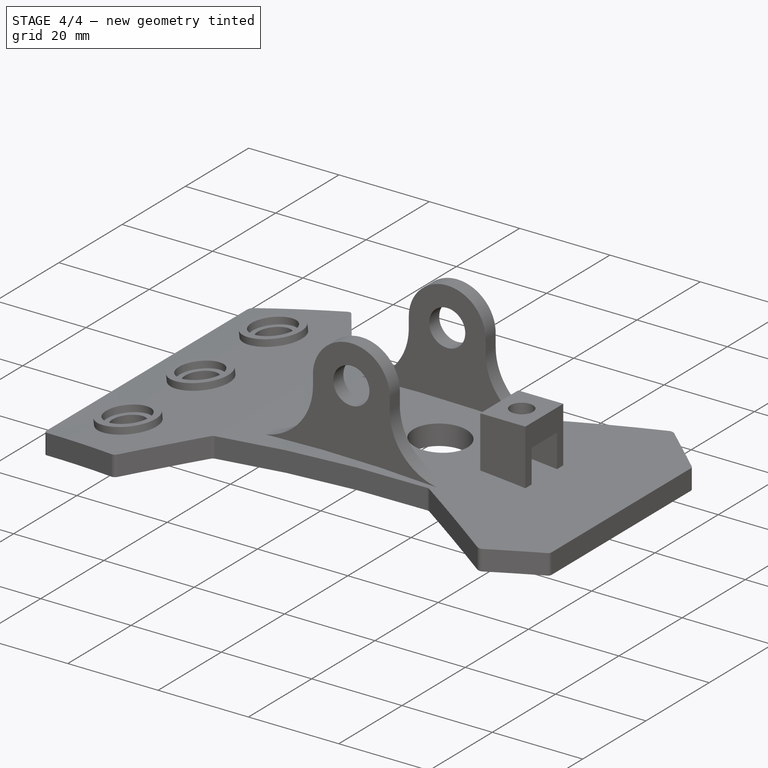
[diagram: stage 4 of 4 — iso view after this stage's code; geometry added in this stage tinted green]
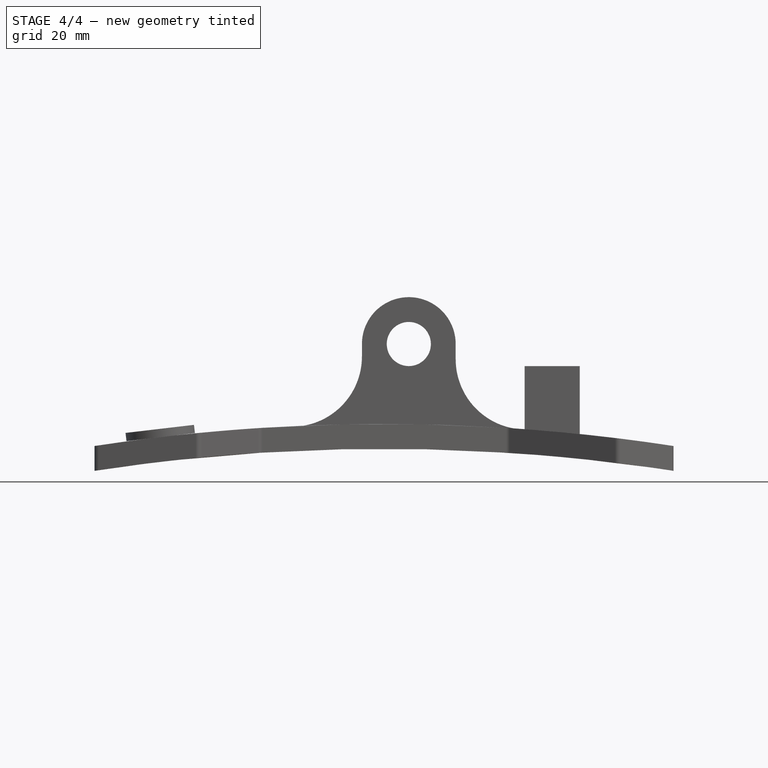
[diagram: stage 4 of 4 — front view after this stage's code; geometry added in this stage tinted green]
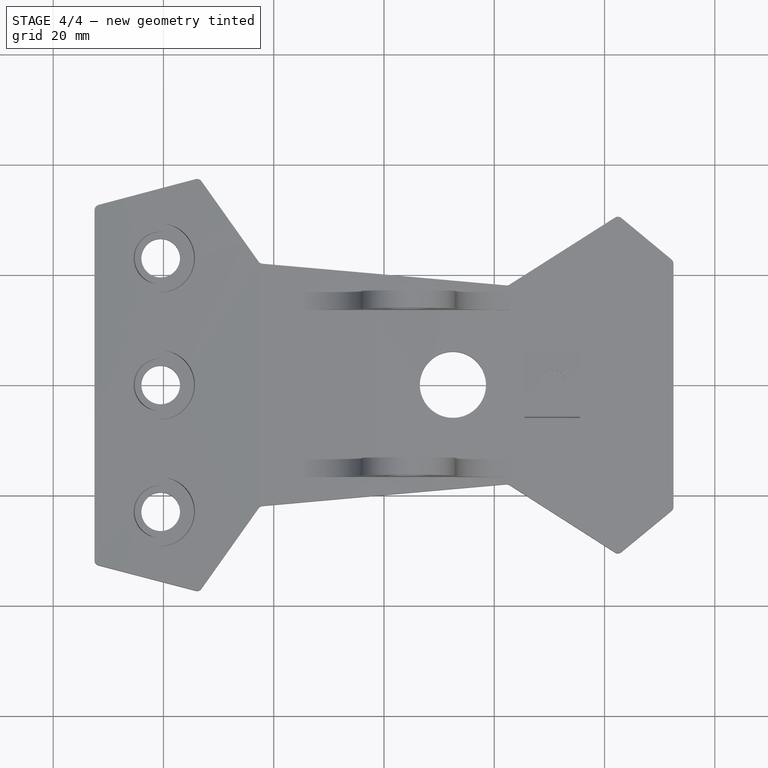
[diagram: stage 4 of 4 — top view after this stage's code; geometry added in this stage tinted green]
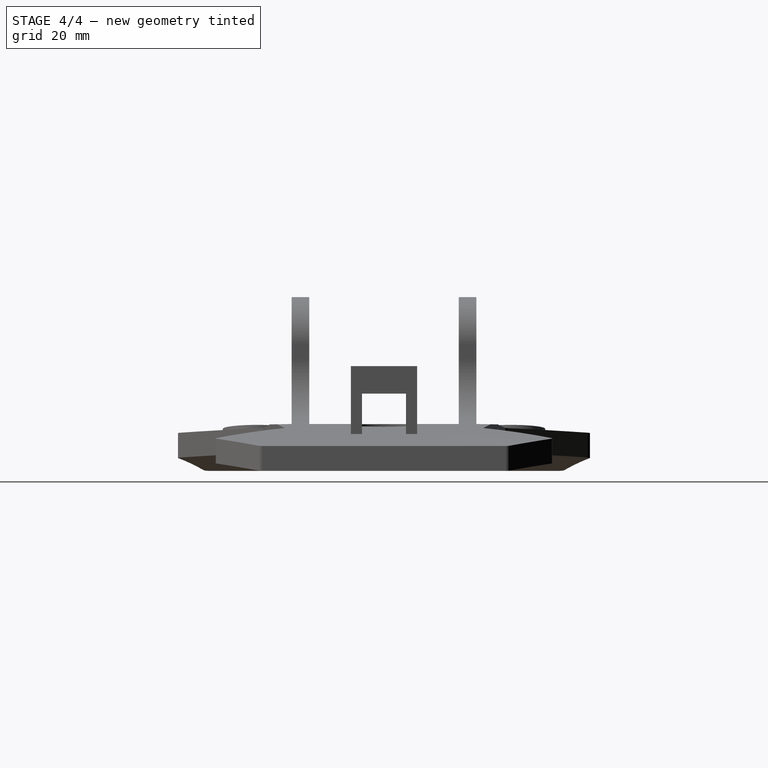
[diagram: stage 4 of 4 — right view after this stage's code; geometry added in this stage tinted green]
FEATURE [Part::Part2DObjectPython] VThreadProfile  # Draft 2D object (typed FeaturePython)
  Area = 21.5648
  Closed = true
  Continuity = C3
  Instructions = Expand this with the ... button to view instructions | Sweep this object along a helix of the same pitch to produce your thread. | It is recommended to make the helix in the ThreadProfile workbench. | If there is an active Body the ThreadProfile object will be put into it.,If not it can be dragged and dropped into the body later. | If there is an active Body when the helix is made there will be made a ShapeBinder for it | For internal threads you will need to cut the Sweep object out of a cylinder, or if using Part Design sweep it as a Subtractive Pipe. | Always use Frenet mode | I have provided some presets, but it is possible there could be some errors.  Double check for mission critical applications. | Also, the tolerances might be different from what you wish to have.  I believe the internal minor diameters are all minimum and the external are all maximum.
  InternalOrExternal = 1
  MakeFace = true
  MinorDiameter = 4.773
  Parameterization = 1
  Pitch = 1
  Placement = pos=(30.5,0,12) rot=(0,0,1;0rad)
  Points = (719) [(2.38406,0.0208343,0),(2.38153,0.0416275,0),(2.3789,0.0623805,0),(2.37618,0.0830937,0),(2.37336,0.103767,0),(2.37042,0.124402,0),(2.36737,0.144997,0),+712 more]
  Presets = 0
  Quality = 1
  ThreadCount = 10
  Version = 1.68
  external_data = [-0.00235387,-0.00461052,-0.00677828,-0.00886428,-0.0108747,-0.0128149,-0.0146895,-0.0165028,-0.0182584,-0.0199597,-0.0216095,-0.0232106,-0.0247653,-0.0262759,-0.0277444,-0.0291725,-0.0305621,-0.0319145,-0.0332313,-0.0345138,-0.0357632,+698 more]
  internal_data = [0,0,0,0,0,0,0,0,0,0,0,0,0,0,0,0,0,0,0,0,0,0,0,0,0,0,0,0,0,0,0,0,0,0,0,0,0,0,0,0,0,0,0,0,0,0,0,0,0,0,0,0,0,0,0,0,0,0,0,0,0,0,0,0,0,0,0,0,0,0,0,0,0,0,0,0,0,0,0,0,0,0,0,0,0,0,0,0,0,0,0,0,0,0,0,0,0,0,0,0,0,0,0,0,0,0,0,0,0,0,0,0,0,0,0,0,0,0,0,0,+599 more]
  preset_names = <blob: 3959 chars omitted>
  presets_data = [0,0,0,2.20878,24.1173,24.6888,0.25,0.693,0.729,0.25,0.793,0.829,0.25,0.893,0.929,0.3,1.032,1.075,0.35,1.171,1.221,0.35,1.371,1.421,0.4,1.509,1.567,0.45,1.648,1.713,0.45,1.948,2.013,0.5,2.387,2.459,0.6,2.764,2.85,0.7,3.141,3.242,0.75,3.58,+712 more]
  expr: .Placement.Base.z = <<Dimensions>>.CableTieToBase + <<Dimensions>>.CableTieBoxHeight - <<Dimensions>>.CableTieXWallThickness - 2mm
  expr: .Placement.Base.x = <<Dimensions>>.CableTieCentrePosition
FEATURE [Part::Helix] Helix
  Angle = 0
  AttacherType = Attacher::AttachEngine3D
  Height = 10
  LocalCoord = 0
  Pitch = 1
  Placement = pos=(30.5,0,12) rot=(0,0,1;0rad)
  Radius = 3
  Style = 0
  expr: Pitch = VThreadProfile.Pitch
  expr: Height = VThreadProfile.ThreadCount * VThreadProfile.Pitch
  expr: .Placement.Base.z = VThreadProfile.Placement.Base.z
  expr: .Placement.Base.x = VThreadProfile.Placement.Base.x
  expr: .Placement.Base.y = VThreadProfile.Placement.Base.y
  expr: .Placement.Rotation.Angle = VThreadProfile.Placement.Rotation.Angle
  expr: .Placement.Rotation.Axis.x = VThreadProfile.Placement.Rotation.Axis.x
  expr: .Placement.Rotation.Axis.y = VThreadProfile.Placement.Rotation.Axis.y
  expr: .Placement.Rotation.Axis.z = VThreadProfile.Placement.Rotation.Axis.z
FEATURE [Part::Sweep] Sweep
  Frenet = true
  Sections = -> [VThreadProfile]
  Solid = true
  Spine = -> Helix [Edge1,Edge2,Edge3,Edge4,Edge5,Edge6,Edge7,Edge8,Edge9,Edge10]
  Transition = 1
FEATURE [Part::Cut] Cut
  Base = -> Pocket001
  Tool = -> Sweep
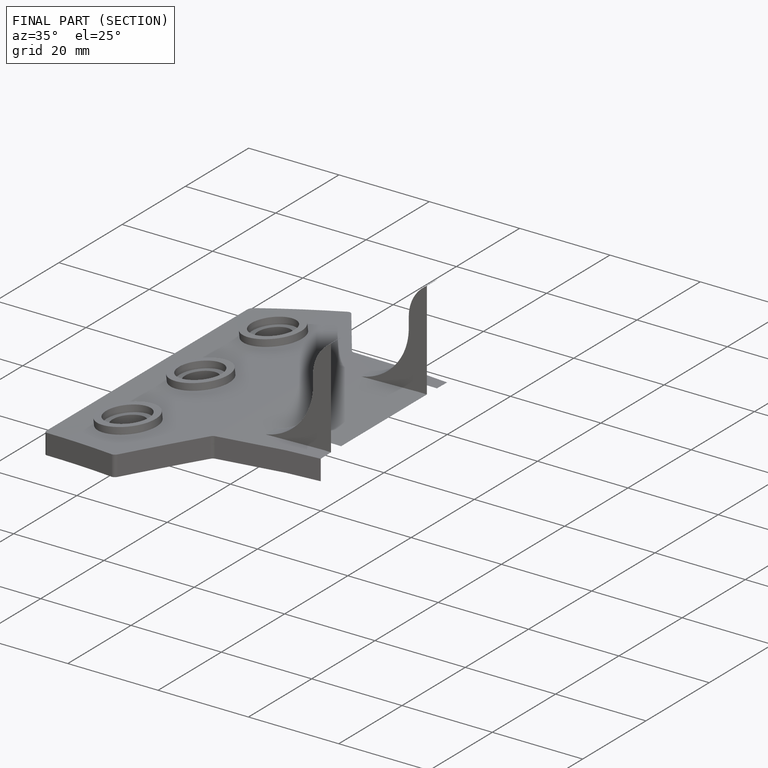
[diagram: finished part — half-section view (interior)]
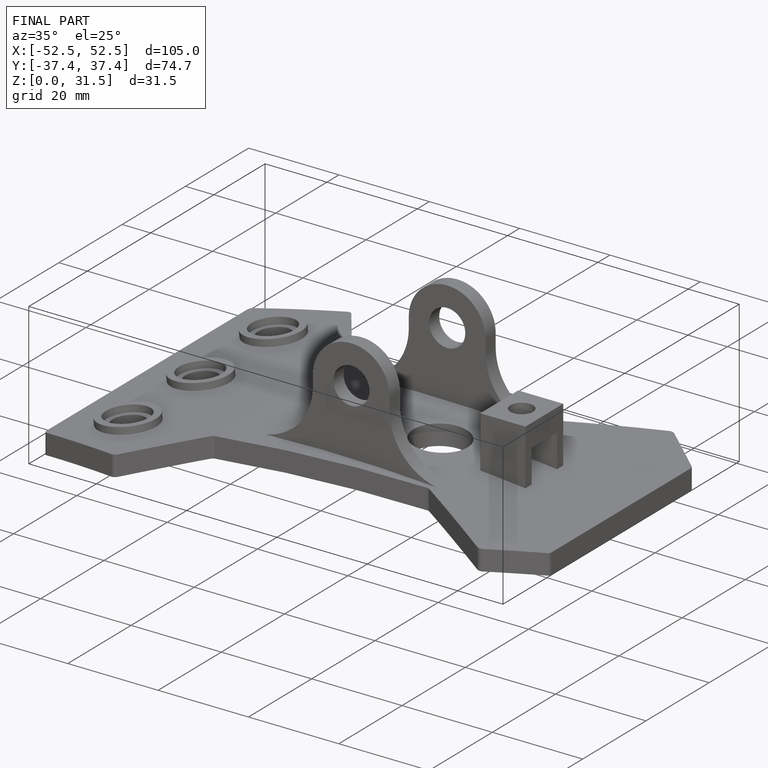
[diagram: finished part — iso view with bounding-box wireframe]
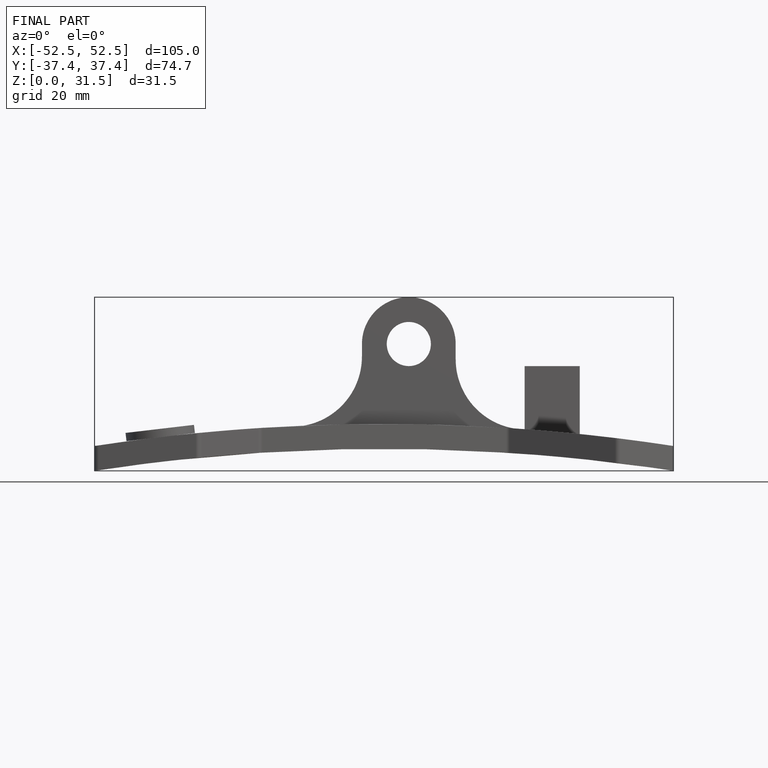
[diagram: finished part — front view with bounding-box wireframe]
